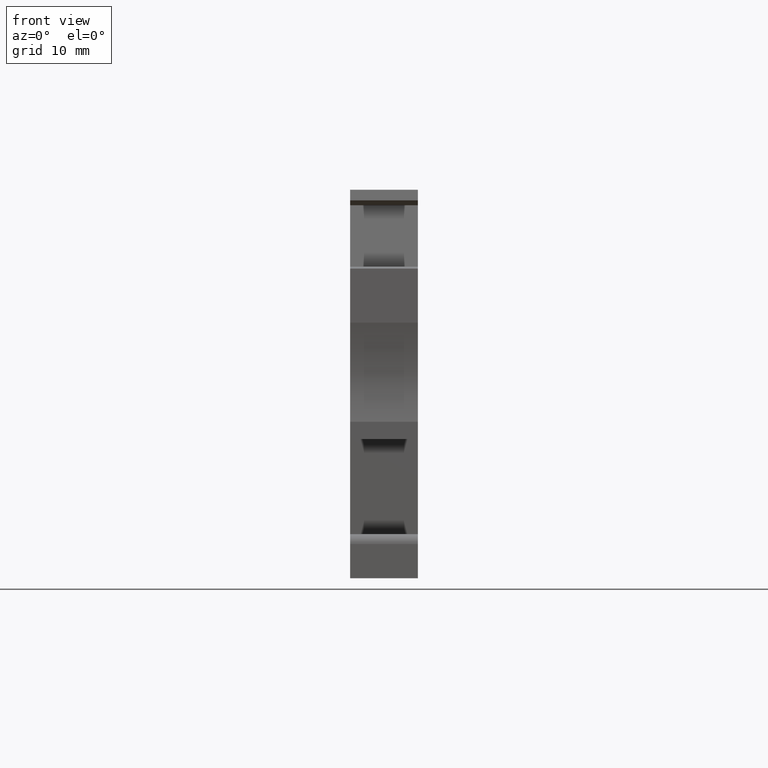
[diagram: clean part render]
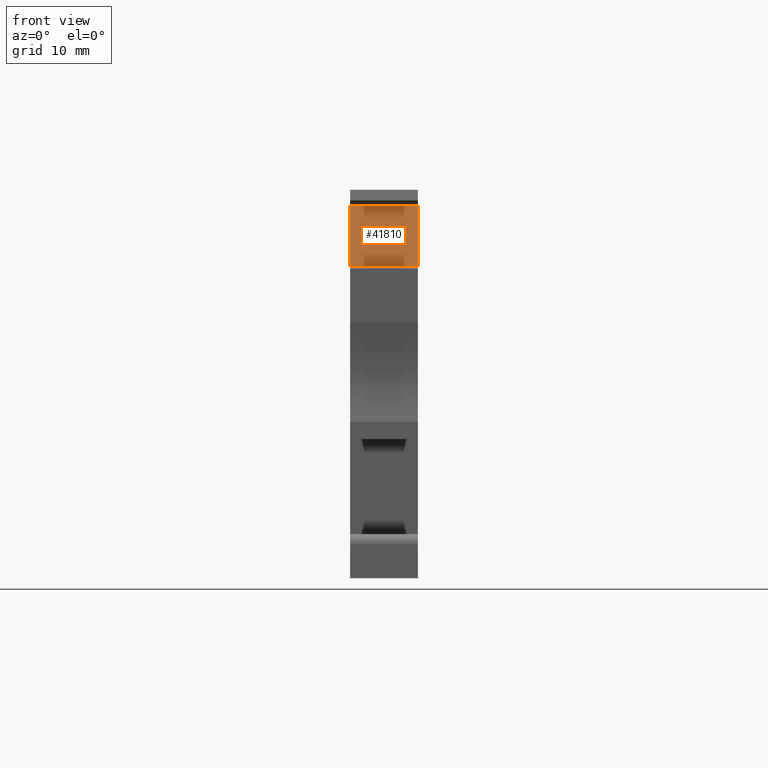
[diagram: same view with one face highlighted and labeled with its STEP entity id]
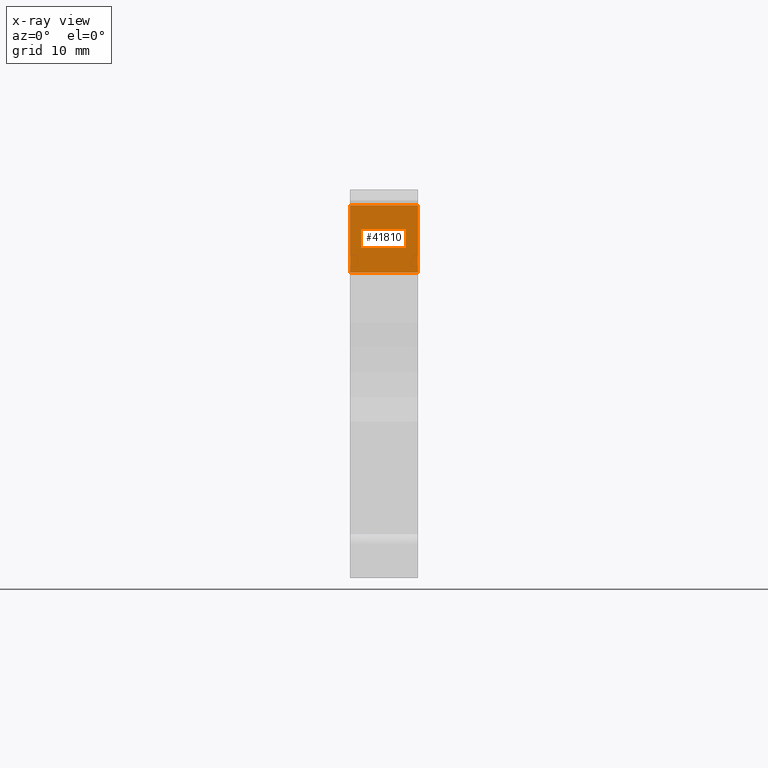
[diagram: x-ray of the same camera — body ghosted, the highlighted face saturated]
A machine part, front view. The second image highlights one B-rep face of the part: STEP entity #41810.
The next image is the same camera in x-ray: the body ghosted, the highlighted face saturated — about 0% of this face is hidden behind the body in this view.
In plain terms, the highlighted planar face has unit normal (0, 0.9659, -0.2588).
Its self-contained STEP definition (entity closure, byte-faithful):
#1030=CARTESIAN_POINT('',(-45.7980339080737,12.4811491021973,
0.999999999999993));
#1040=VERTEX_POINT('',#1030);
#1070=CARTESIAN_POINT('',(-49.1423477306224,-3.5527136788005E-15,
0.999999999999993));
#1080=DIRECTION('',(0.258819045102705,0.965925826289019,0.));
#1090=VECTOR('',#1080,1.);
#1100=LINE('',#1070,#1090);
#1110=CARTESIAN_POINT('',(-44.1610034477991,18.5906299534751,
0.999999999999993));
#1120=VERTEX_POINT('',#1110);
#1130=EDGE_CURVE('',#1040,#1120,#1100,.T.);
#39140=CARTESIAN_POINT('',(-44.1610034477991,18.5906299534751,
0.999999999999993));
#39150=DIRECTION('',(0.,0.,-1.));
#39160=VECTOR('',#39150,1.);
#39170=LINE('',#39140,#39160);
#39180=CARTESIAN_POINT('',(-44.1610034477991,18.5906299534751,
-5.15000000000001));
#39190=VERTEX_POINT('',#39180);
#39200=EDGE_CURVE('',#1120,#39190,#39170,.T.);
#39570=CARTESIAN_POINT('',(-45.7980339080737,12.4811491021973,
-5.15000000000001));
#39580=VERTEX_POINT('',#39570);
#39610=CARTESIAN_POINT('',(-45.7980339080737,12.4811491021973,
0.999999999999993));
#39620=DIRECTION('',(0.,0.,-1.));
#39630=VECTOR('',#39620,1.);
#39640=LINE('',#39610,#39630);
#39650=EDGE_CURVE('',#1040,#39580,#39640,.T.);
#41650=CARTESIAN_POINT('',(-45.6686243855224,12.9641120153414,
0.999999999999993));
#41660=DIRECTION('',(0.965925826289019,-0.258819045102705,0.));
#41670=DIRECTION('',(-0.258819045102705,-0.965925826289019,0.));
#41680=AXIS2_PLACEMENT_3D('',#41650,#41660,#41670);
#41690=PLANE('',#41680);
#41700=ORIENTED_EDGE('',*,*,#39200,.T.);
#41710=ORIENTED_EDGE('',*,*,#1130,.T.);
#41720=ORIENTED_EDGE('',*,*,#39650,.F.);
#41730=CARTESIAN_POINT('',(-51.4869031643965,-8.75000000000004,
-5.15000000000001));
#41740=DIRECTION('',(-0.258819045102705,-0.965925826289019,0.));
#41750=VECTOR('',#41740,1.);
#41760=LINE('',#41730,#41750);
#41770=EDGE_CURVE('',#39190,#39580,#41760,.T.);
#41780=ORIENTED_EDGE('',*,*,#41770,.T.);
#41790=EDGE_LOOP('',(#41780,#41720,#41710,#41700));
#41800=FACE_OUTER_BOUND('',#41790,.T.);
#41810=ADVANCED_FACE('',(#41800),#41690,.F.);